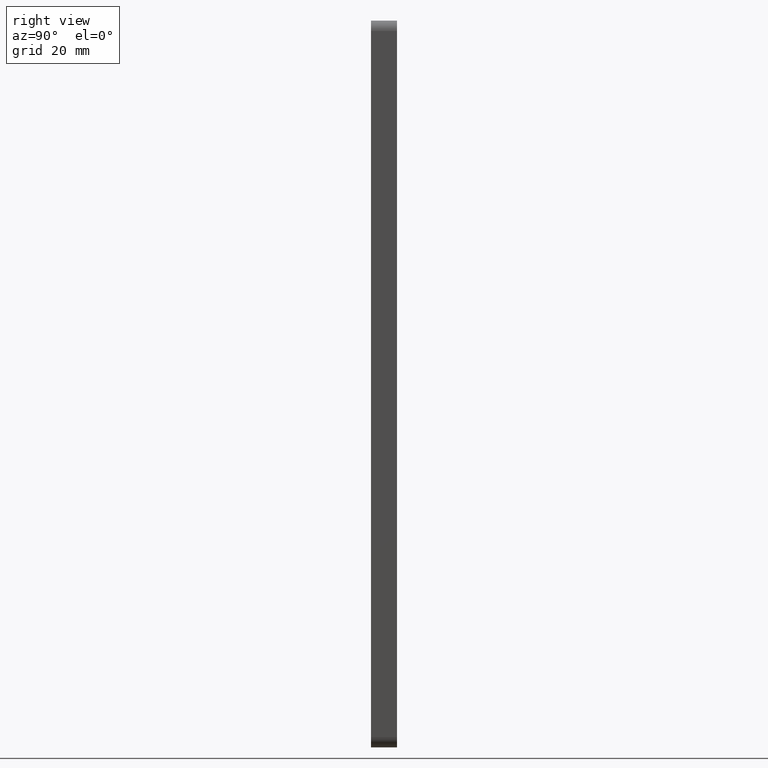
[diagram: clean part render]
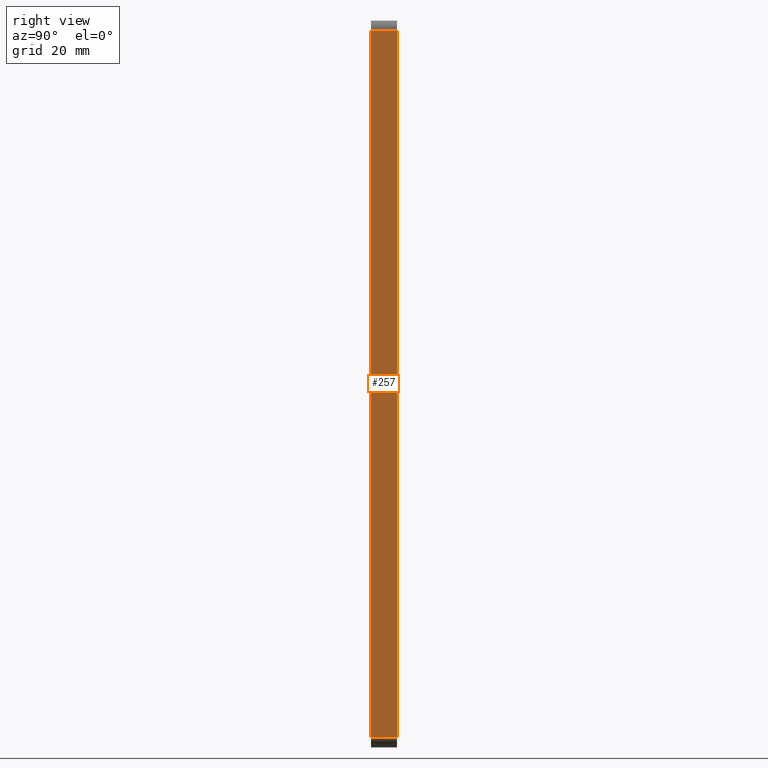
[diagram: same view with one face highlighted and labeled with its STEP entity id]
A machine part, right view. The second image highlights one B-rep face of the part: STEP entity #257.
In plain terms, the highlighted planar face has unit normal (1, 0, 0).
Its self-contained STEP definition (entity closure, byte-faithful):
#17=PLANE('',#287);
#28=LINE('',#419,#44);
#29=LINE('',#424,#45);
#30=LINE('',#427,#46);
#31=LINE('',#428,#47);
#44=VECTOR('',#342,136.);
#45=VECTOR('',#349,5.);
#46=VECTOR('',#352,5.);
#47=VECTOR('',#353,136.);
#73=FACE_OUTER_BOUND('',#95,.T.);
#95=EDGE_LOOP('',(#209,#210,#211,#212));
#138=VERTEX_POINT('',#416);
#139=VERTEX_POINT('',#418);
#140=VERTEX_POINT('',#422);
#141=VERTEX_POINT('',#426);
#164=EDGE_CURVE('',#138,#139,#28,.T.);
#167=EDGE_CURVE('',#139,#140,#29,.T.);
#168=EDGE_CURVE('',#141,#138,#30,.T.);
#169=EDGE_CURVE('',#140,#141,#31,.T.);
#209=ORIENTED_EDGE('',*,*,#167,.F.);
#210=ORIENTED_EDGE('',*,*,#164,.F.);
#211=ORIENTED_EDGE('',*,*,#168,.F.);
#212=ORIENTED_EDGE('',*,*,#169,.F.);
#257=ADVANCED_FACE('',(#73),#17,.T.);
#287=AXIS2_PLACEMENT_3D('',#425,#350,#351);
#342=DIRECTION('',(0.,0.,-1.));
#349=DIRECTION('',(0.,-1.,0.));
#350=DIRECTION('center_axis',(1.,0.,0.));
#351=DIRECTION('ref_axis',(0.,1.,0.));
#352=DIRECTION('',(0.,1.,0.));
#353=DIRECTION('',(0.,0.,1.));
#416=CARTESIAN_POINT('',(7.5,2.5,68.));
#418=CARTESIAN_POINT('',(7.5,2.5,-68.));
#419=CARTESIAN_POINT('',(7.5,2.5,0.));
#422=CARTESIAN_POINT('',(7.5,-2.5,-68.));
#424=CARTESIAN_POINT('',(7.5,-1.25,-68.));
#425=CARTESIAN_POINT('Origin',(7.5,-2.5,0.));
#426=CARTESIAN_POINT('',(7.5,-2.5,68.));
#427=CARTESIAN_POINT('',(7.5,-1.25,68.));
#428=CARTESIAN_POINT('',(7.5,-2.5,0.));